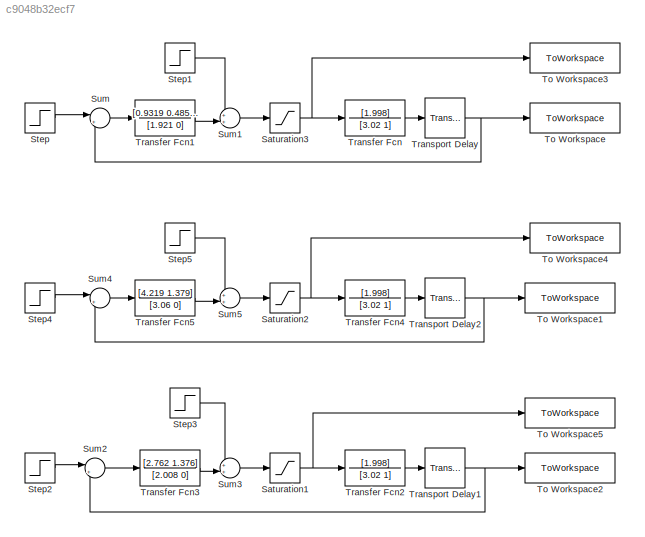
MODEL slx_c9048b32ecf7
KIND model
CONFIG AbsTol = auto
CONFIG EnableMultiTasking = off
CONFIG FixedStep = auto
CONFIG MaxStep = auto
CONFIG MinStep = auto
CONFIG RelTol = 1e-3
CONFIG SampleTimeConstraint = Unconstrained
CONFIG SolverName = VariableStepAuto
CONFIG StartTime = 0.0
CONFIG StopTime = 80
BLOCK [Saturate] Saturation1
  LowerLimit = -0.75
  UpperLimit = 0.75
BLOCK [Saturate] Saturation2
  LowerLimit = -0.75
  UpperLimit = 0.75
BLOCK [Saturate] Saturation3
  LowerLimit = -0.75
  UpperLimit = 0.75
BLOCK [Step] Step
  SampleTime = 0
BLOCK [Step] Step1
  SampleTime = 0
  Time = 40
BLOCK [Step] Step2
  SampleTime = 0
BLOCK [Step] Step3
  SampleTime = 0
  Time = 40
BLOCK [Step] Step4
  SampleTime = 0
BLOCK [Step] Step5
  SampleTime = 0
  Time = 40
BLOCK [Sum] Sum
  Inputs = |+-
  Ports = [2, 1]
BLOCK [Sum] Sum1
  Inputs = ++|
  Ports = [2, 1]
BLOCK [Sum] Sum2
  Inputs = |+-
  Ports = [2, 1]
BLOCK [Sum] Sum3
  Inputs = ++|
  Ports = [2, 1]
BLOCK [Sum] Sum4
  Inputs = |+-
  Ports = [2, 1]
BLOCK [Sum] Sum5
  Inputs = ++|
  Ports = [2, 1]
BLOCK [ToWorkspace] To Workspace
  FixptAsFi = on
  MaxDataPoints = inf
  Ports = [1]
  SampleTime = 0.0001
  SaveFormat = Timeseries
  VariableName = SystemHaglundAstrom
BLOCK [ToWorkspace] To Workspace1
  FixptAsFi = on
  MaxDataPoints = inf
  Ports = [1]
  SampleTime = 0.0001
  SaveFormat = Timeseries
  VariableName = SystemZieglerNichols
BLOCK [ToWorkspace] To Workspace2
  FixptAsFi = on
  MaxDataPoints = inf
  Ports = [1]
  SampleTime = 0.0001
  SaveFormat = Timeseries
  VariableName = SystemCohenAndCoon
BLOCK [ToWorkspace] To Workspace3
  FixptAsFi = on
  MaxDataPoints = inf
  Ports = [1]
  SampleTime = 0.0001
  SaveFormat = Timeseries
  VariableName = HaglundAstrom
BLOCK [ToWorkspace] To Workspace4
  FixptAsFi = on
  MaxDataPoints = inf
  Ports = [1]
  SampleTime = 0.0001
  SaveFormat = Timeseries
  VariableName = ZieglerNichols
BLOCK [ToWorkspace] To Workspace5
  FixptAsFi = on
  MaxDataPoints = inf
  Ports = [1]
  SampleTime = 0.0001
  SaveFormat = Timeseries
  VariableName = CohenAndCoon
BLOCK [TransferFcn] Transfer Fcn
  Denominator = [3.02 1]
  Numerator = [1.998]
BLOCK [TransferFcn] Transfer Fcn1
  Denominator = [1.921 0]
  Numerator = [0.9319 0.4851]
BLOCK [TransferFcn] Transfer Fcn2
  Denominator = [3.02 1]
  Numerator = [1.998]
BLOCK [TransferFcn] Transfer Fcn3
  Denominator = [2.008 0]
  Numerator = [2.762 1.376]
BLOCK [TransferFcn] Transfer Fcn4
  Denominator = [3.02 1]
  Numerator = [1.998]
BLOCK [TransferFcn] Transfer Fcn5
  Denominator = [3.06 0]
  Numerator = [4.219 1.379]
BLOCK [TransportDelay] Transport Delay
  BufferSize = 10240
  Ports = [1, 1]
BLOCK [TransportDelay] Transport Delay1
  BufferSize = 10240
  Ports = [1, 1]
BLOCK [TransportDelay] Transport Delay2
  BufferSize = 10240
  Ports = [1, 1]
NET Saturation1:1 -> To Workspace5:1, Transfer Fcn2:1
NET Saturation2:1 -> To Workspace4:1, Transfer Fcn4:1
NET Saturation3:1 -> To Workspace3:1, Transfer Fcn:1
LINE Step1:1 -> Sum1:1
LINE Step2:1 -> Sum2:1
LINE Step3:1 -> Sum3:1
LINE Step4:1 -> Sum4:1
LINE Step5:1 -> Sum5:1
LINE Step:1 -> Sum:1
LINE Sum1:1 -> Saturation3:1
LINE Sum2:1 -> Transfer Fcn3:1
LINE Sum3:1 -> Saturation1:1
LINE Sum4:1 -> Transfer Fcn5:1
LINE Sum5:1 -> Saturation2:1
LINE Sum:1 -> Transfer Fcn1:1
LINE Transfer Fcn1:1 -> Sum1:2
LINE Transfer Fcn2:1 -> Transport Delay1:1
LINE Transfer Fcn3:1 -> Sum3:2
LINE Transfer Fcn4:1 -> Transport Delay2:1
LINE Transfer Fcn5:1 -> Sum5:2
LINE Transfer Fcn:1 -> Transport Delay:1
NET Transport Delay1:1 -> Sum2:2, To Workspace2:1
NET Transport Delay2:1 -> Sum4:2, To Workspace1:1
NET Transport Delay:1 -> Sum:2, To Workspace:1
note: NET lines group one-source signal fan-out (src -> all destinations, sorted); 1:1 wires keep LINE
